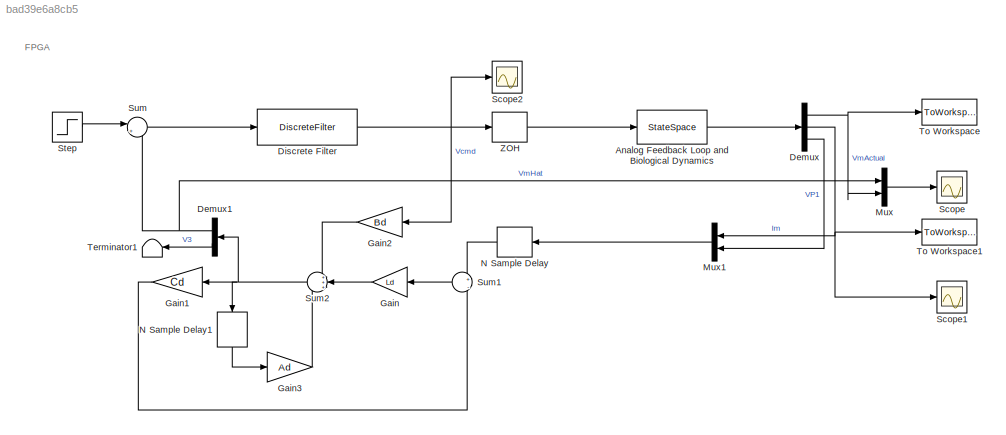
MODEL slx_bad39e6a8cb5
KIND model
CONFIG AbsTol = auto
CONFIG EnableMultiTasking = off
CONFIG FixedStep = dTMax
CONFIG MaxStep = dTMax
CONFIG MinStep = auto
CONFIG RelTol = 1e-3
CONFIG SampleTimeConstraint = Unconstrained
CONFIG SolverName = VariableStepAuto
CONFIG StartTime = 0.0
CONFIG StopTime = Tsim
BLOCK [StateSpace] Analog Feedback Loop and Biological Dynamics
  A = A
  B = B
  C = C
  D = D
  InitialCondition = x0
  Ports = [1, 1]
BLOCK [Demux] Demux
  Outputs = 3
  Ports = [1, 3]
BLOCK [Demux] Demux1
  NameLocation = top
  Outputs = 2
  Ports = [1, 2]
BLOCK [DiscreteFilter] Discrete Filter
  Denominator = [1 a1 a2]
  InputPortMap = u0
  Numerator = [b0 b1 b2]
  Ports = [1, 1]
  SampleTime = Ts
BLOCK [Gain] Gain
  Gain = Ld
  Multiplication = Matrix(K*u)
  NameLocation = top
BLOCK [Gain] Gain1
  Gain = Cd
  Multiplication = Matrix(K*u)
  NameLocation = top
BLOCK [Gain] Gain2
  Gain = Bd
  Multiplication = Matrix(K*u)
  NameLocation = top
BLOCK [Gain] Gain3
  Gain = Ad
  Multiplication = Matrix(K*u)
BLOCK [Mux] Mux
  DisplayOption = bar
  Inputs = 2
  Ports = [2, 1]
BLOCK [Mux] Mux1
  DisplayOption = bar
  Inputs = 2
  NameLocation = top
  Ports = [2, 1]
BLOCK [Delay] N Sample Delay
  DelayLength = N
  InputPortMap = u0
  NameLocation = top
  Ports = [1, 1]
  SampleTime = Ts
BLOCK [Delay] N Sample Delay1
  DelayLength = 1
  InputPortMap = u0
  NameLocation = left
  Ports = [1, 1]
  SampleTime = Ts
BLOCK [Scope] Scope
  Floating = off
  NumInputPorts = 1
  Ports = [1]
  ScopeSpecificationString = Simulink.scopes.TimeScopeBlockCfg('CurrentConfiguration', extmgr.ConfigurationSet(extmgr.Configuration('Core','General UI',true),extmgr.Configuration('Core','Source UI',true),extmgr.Configuration('Sources','WiredSimulink',true),extmgr.Configuration('Visuals','Time Domain',true,'SerializedDisplays',{struct('MinYLimReal','-0.03208','MaxYLimReal','0.28868','YLabelReal','','MinYLimMag','0.00000','MaxY...<+1382ch>
BLOCK [Scope] Scope1
  Floating = off
  NumInputPorts = 1
  Ports = [1]
  ScopeSpecificationString = Simulink.scopes.TimeScopeBlockCfg('CurrentConfiguration', extmgr.ConfigurationSet(extmgr.Configuration('Core','General UI',true),extmgr.Configuration('Core','Source UI',true),extmgr.Configuration('Sources','WiredSimulink',true,'DataLoggingVariableName','ScopeData1'),extmgr.Configuration('Visuals','Time Domain',true,'SerializedDisplays',{struct('MinYLimReal','-0.00006','MaxYLimReal','0.00043','YLab...<+1409ch>
BLOCK [Scope] Scope2
  Floating = off
  NumInputPorts = 1
  Ports = [1]
  ScopeSpecificationString = Simulink.scopes.TimeScopeBlockCfg('CurrentConfiguration', extmgr.ConfigurationSet(extmgr.Configuration('Core','General UI',true),extmgr.Configuration('Core','Source UI',true),extmgr.Configuration('Sources','WiredSimulink',true,'DataLoggingVariableName','ScopeData1'),extmgr.Configuration('Visuals','Time Domain',true,'SerializedDisplays',{struct('MinYLimReal','-217.57532','MaxYLimReal','30.89279','Y...<+1432ch>
BLOCK [Step] Step
  After = VmDes
  SampleTime = 0
  Time = 0
BLOCK [Sum] Sum
  Inputs = |+-
  Ports = [2, 1]
BLOCK [Sum] Sum1
  Inputs = +|-
  NameLocation = top
  Ports = [2, 1]
BLOCK [Sum] Sum2
  Inputs = +++
  NameLocation = top
  Ports = [3, 1]
BLOCK [Terminator] Terminator1
  NameLocation = top
BLOCK [ToWorkspace] To Workspace
  FixptAsFi = on
  MaxDataPoints = inf
  Ports = [1]
  SampleTime = -1
  SaveFormat = Timeseries
  VariableName = Vm
BLOCK [ToWorkspace] To Workspace1
  FixptAsFi = on
  MaxDataPoints = inf
  Ports = [1]
  SampleTime = -1
  SaveFormat = Timeseries
  VariableName = Im
BLOCK [ZeroOrderHold] ZOH
  SampleTime = Ts
ANNOTATION (root): FPGA
LINE Analog Feedback Loop and Biological Dynamics:1 -> Demux:1
NET Demux1:1 -> Mux:1, Sum:2
LINE Demux1:2 -> Terminator1:1
NET Demux:1 -> Mux:2, To Workspace:1
NET Demux:2 -> Mux1:1, Scope1:1, To Workspace1:1
LINE Demux:3 -> Mux1:2
NET Discrete Filter:1 -> Gain2:1, Scope2:1, ZOH:1
LINE Gain1:1 -> Sum1:2
LINE Gain2:1 -> Sum2:1
LINE Gain3:1 -> Sum2:3
LINE Gain:1 -> Sum2:2
LINE Mux1:1 -> N Sample Delay:1
LINE Mux:1 -> Scope:1
LINE N Sample Delay1:1 -> Gain3:1
LINE N Sample Delay:1 -> Sum1:1
LINE Step:1 -> Sum:1
LINE Sum1:1 -> Gain:1
NET Sum2:1 -> Demux1:1, Gain1:1, N Sample Delay1:1
LINE Sum:1 -> Discrete Filter:1
LINE ZOH:1 -> Analog Feedback Loop and Biological Dynamics:1
note: NET lines group one-source signal fan-out (src -> all destinations, sorted); 1:1 wires keep LINE
